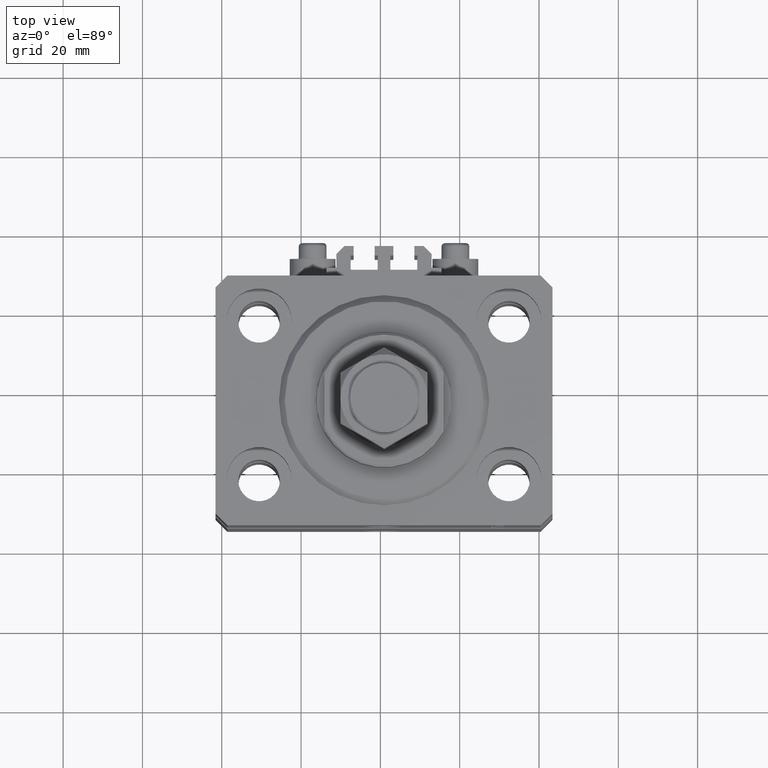
[diagram: clean part render]
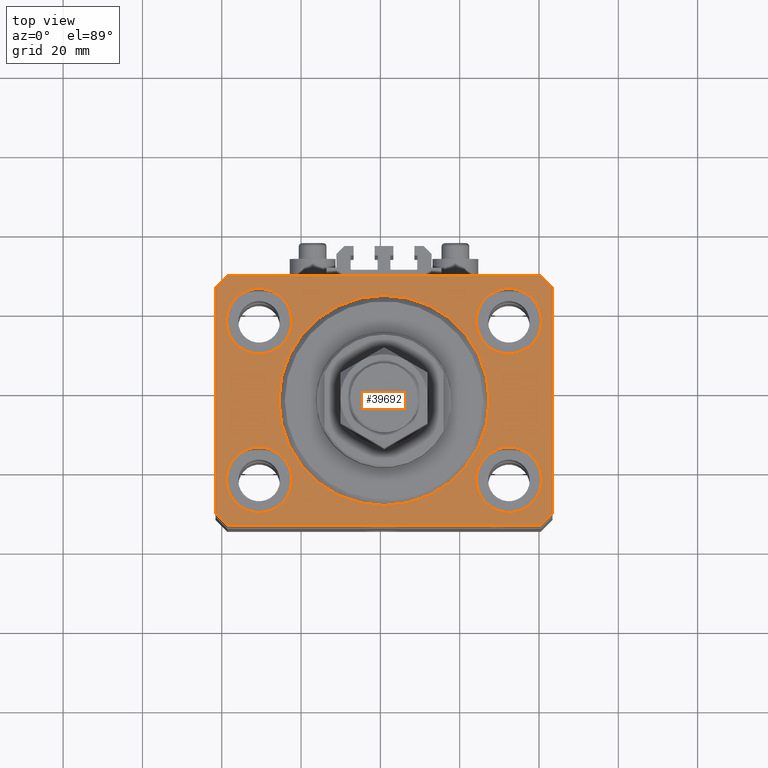
[diagram: same view with one face highlighted and labeled with its STEP entity id]
A machine part, top view. The second image highlights one B-rep face of the part: STEP entity #39692.
In plain terms, the highlighted planar face has unit normal (0, 0, 1).
Its self-contained STEP definition (entity closure, byte-faithful):
#910 = EDGE_LOOP ( 'NONE', ( #41602, #21424 ) ) ;
#1251 = VERTEX_POINT ( 'NONE', #37054 ) ;
#1257 = DIRECTION ( 'NONE',  ( 1.000000000000000000, 0.000000000000000000, 0.000000000000000000 ) ) ;
#1356 = ORIENTED_EDGE ( 'NONE', *, *, #16216, .T. ) ;
#1658 = DIRECTION ( 'NONE',  ( 1.000000000000000000, 0.000000000000000000, 0.000000000000000000 ) ) ;
#2346 = AXIS2_PLACEMENT_3D ( 'NONE', #21245, #6319, #17783 ) ;
#2505 = CARTESIAN_POINT ( 'NONE',  ( -23.25000000000000000, -20.00000000000000000, 0.000000000000000000 ) ) ;
#3158 = CIRCLE ( 'NONE', #14306, 8.250000000000000000 ) ;
#3295 = CIRCLE ( 'NONE', #22387, 8.249999999999992895 ) ;
#3418 = VERTEX_POINT ( 'NONE', #23102 ) ;
#4095 = CARTESIAN_POINT ( 'NONE',  ( 0.000000000000000000, 0.000000000000000000, 0.000000000000000000 ) ) ;
#4358 = CIRCLE ( 'NONE', #22648, 26.50000000000000355 ) ;
#4408 = DIRECTION ( 'NONE',  ( 0.000000000000000000, 0.000000000000000000, 1.000000000000000000 ) ) ;
#4598 = DIRECTION ( 'NONE',  ( -1.000000000000000000, 0.000000000000000000, 0.000000000000000000 ) ) ;
#4822 = DIRECTION ( 'NONE',  ( 1.000000000000000000, 0.000000000000000000, 0.000000000000000000 ) ) ;
#4964 = CARTESIAN_POINT ( 'NONE',  ( 42.50000000000051870, 28.49999999999995381, 0.000000000000000000 ) ) ;
#5398 = EDGE_CURVE ( 'NONE', #35491, #14835, #19025, .T. ) ;
#5399 = FACE_BOUND ( 'NONE', #910, .T. ) ;
#5593 = VERTEX_POINT ( 'NONE', #40188 ) ;
#5596 = EDGE_CURVE ( 'NONE', #22363, #1251, #28612, .T. ) ;
#5786 = EDGE_CURVE ( 'NONE', #25481, #46720, #3158, .T. ) ;
#5935 = VECTOR ( 'NONE', #19858, 1000.000000000000000 ) ;
#6208 = CARTESIAN_POINT ( 'NONE',  ( -31.50000000000000000, 20.00000000000000000, 0.000000000000000000 ) ) ;
#6319 = DIRECTION ( 'NONE',  ( 0.000000000000000000, 0.000000000000000000, 1.000000000000000000 ) ) ;
#6420 = LINE ( 'NONE', #36298, #46333 ) ;
#6706 = DIRECTION ( 'NONE',  ( 0.000000000000000000, 0.000000000000000000, 1.000000000000000000 ) ) ;
#8273 = VERTEX_POINT ( 'NONE', #10079 ) ;
#8701 = ORIENTED_EDGE ( 'NONE', *, *, #46105, .F. ) ;
#9136 = CARTESIAN_POINT ( 'NONE',  ( 42.50000000000051870, 28.49999999999995381, 0.000000000000000000 ) ) ;
#9358 = CARTESIAN_POINT ( 'NONE',  ( 42.50000000000000711, -28.50000000000000355, 0.000000000000000000 ) ) ;
#9655 = DIRECTION ( 'NONE',  ( 0.000000000000000000, -1.000000000000000000, 0.000000000000000000 ) ) ;
#9723 = CARTESIAN_POINT ( 'NONE',  ( -42.50000000000000000, -28.50000000000000000, 0.000000000000000000 ) ) ;
#10079 = CARTESIAN_POINT ( 'NONE',  ( 39.50000000000056843, 31.50000000000000000, 0.000000000000000000 ) ) ;
#10335 = VECTOR ( 'NONE', #17113, 1000.000000000000000 ) ;
#11861 = AXIS2_PLACEMENT_3D ( 'NONE', #4095, #12294, #4822 ) ;
#12226 = CARTESIAN_POINT ( 'NONE',  ( -23.25000000000000000, 20.00000000000000000, 0.000000000000000000 ) ) ;
#12294 = DIRECTION ( 'NONE',  ( 0.000000000000000000, 0.000000000000000000, 1.000000000000000000 ) ) ;
#12867 = FACE_OUTER_BOUND ( 'NONE', #42134, .T. ) ;
#12987 = CARTESIAN_POINT ( 'NONE',  ( -31.50000000000000000, 20.00000000000000000, 0.000000000000000000 ) ) ;
#13626 = CARTESIAN_POINT ( 'NONE',  ( 31.50000000000000000, 20.00000000000001066, 0.000000000000000000 ) ) ;
#13877 = DIRECTION ( 'NONE',  ( 1.000000000000000000, 0.000000000000000000, 0.000000000000000000 ) ) ;
#14235 = ORIENTED_EDGE ( 'NONE', *, *, #16903, .F. ) ;
#14250 = ORIENTED_EDGE ( 'NONE', *, *, #25965, .T. ) ;
#14306 = AXIS2_PLACEMENT_3D ( 'NONE', #12987, #35398, #38886 ) ;
#14835 = VERTEX_POINT ( 'NONE', #43764 ) ;
#14942 = EDGE_CURVE ( 'NONE', #8273, #31285, #20040, .T. ) ;
#15120 = ORIENTED_EDGE ( 'NONE', *, *, #27520, .F. ) ;
#16216 = EDGE_CURVE ( 'NONE', #17601, #25427, #6420, .T. ) ;
#16250 = CIRCLE ( 'NONE', #48843, 8.249999999999992895 ) ;
#16624 = CIRCLE ( 'NONE', #46827, 8.250000000000000000 ) ;
#16884 = VECTOR ( 'NONE', #4598, 1000.000000000000000 ) ;
#16903 = EDGE_CURVE ( 'NONE', #41244, #42195, #44788, .T. ) ;
#17084 = LINE ( 'NONE', #9358, #42469 ) ;
#17113 = DIRECTION ( 'NONE',  ( -0.7071067811865471286, -0.7071067811865479058, 0.000000000000000000 ) ) ;
#17173 = EDGE_LOOP ( 'NONE', ( #15120, #29763 ) ) ;
#17601 = VERTEX_POINT ( 'NONE', #46708 ) ;
#17783 = DIRECTION ( 'NONE',  ( 1.000000000000000000, 0.000000000000000000, 0.000000000000000000 ) ) ;
#18168 = ORIENTED_EDGE ( 'NONE', *, *, #14942, .T. ) ;
#18419 = CIRCLE ( 'NONE', #20781, 8.250000000000000000 ) ;
#18728 = DIRECTION ( 'NONE',  ( 0.000000000000000000, 0.000000000000000000, 1.000000000000000000 ) ) ;
#18818 = CARTESIAN_POINT ( 'NONE',  ( -26.50000000000000355, 3.245314017740486554E-15, 0.000000000000000000 ) ) ;
#18825 = ORIENTED_EDGE ( 'NONE', *, *, #46125, .F. ) ;
#19025 = CIRCLE ( 'NONE', #11861, 26.50000000000000355 ) ;
#19771 = ORIENTED_EDGE ( 'NONE', *, *, #30513, .T. ) ;
#19858 = DIRECTION ( 'NONE',  ( 0.7071067811865471286, -0.7071067811865479058, 0.000000000000000000 ) ) ;
#19951 = EDGE_CURVE ( 'NONE', #25427, #41489, #20850, .T. ) ;
#20040 = LINE ( 'NONE', #39223, #16884 ) ;
#20333 = FACE_BOUND ( 'NONE', #23026, .T. ) ;
#20355 = VECTOR ( 'NONE', #24648, 1000.000000000000000 ) ;
#20781 = AXIS2_PLACEMENT_3D ( 'NONE', #6208, #6706, #41051 ) ;
#20850 = LINE ( 'NONE', #31312, #5935 ) ;
#20989 = CARTESIAN_POINT ( 'NONE',  ( -39.50000000000000711, -31.50000000000000000, 0.000000000000000000 ) ) ;
#21039 = CARTESIAN_POINT ( 'NONE',  ( -39.50000000000000711, 31.50000000000000000, 0.000000000000000000 ) ) ;
#21245 = CARTESIAN_POINT ( 'NONE',  ( -31.50000000000000000, -20.00000000000000000, 0.000000000000000000 ) ) ;
#21424 = ORIENTED_EDGE ( 'NONE', *, *, #40626, .F. ) ;
#21909 = CARTESIAN_POINT ( 'NONE',  ( -39.75000000000000000, 20.00000000000000000, 0.000000000000000000 ) ) ;
#22363 = VERTEX_POINT ( 'NONE', #2505 ) ;
#22387 = AXIS2_PLACEMENT_3D ( 'NONE', #32590, #25128, #44296 ) ;
#22456 = DIRECTION ( 'NONE',  ( 1.000000000000000000, 0.000000000000000000, 0.000000000000000000 ) ) ;
#22648 = AXIS2_PLACEMENT_3D ( 'NONE', #47423, #18728, #22456 ) ;
#23026 = EDGE_LOOP ( 'NONE', ( #8701, #32516 ) ) ;
#23102 = CARTESIAN_POINT ( 'NONE',  ( 39.50000000000000711, -31.50000000000000000, 0.000000000000000000 ) ) ;
#23330 = FACE_BOUND ( 'NONE', #36959, .T. ) ;
#23756 = VERTEX_POINT ( 'NONE', #4964 ) ;
#23817 = DIRECTION ( 'NONE',  ( -0.7071067811865356934, 0.7071067811865594521, 0.000000000000000000 ) ) ;
#24150 = VERTEX_POINT ( 'NONE', #31533 ) ;
#24244 = ORIENTED_EDGE ( 'NONE', *, *, #32497, .T. ) ;
#24402 = VERTEX_POINT ( 'NONE', #40892 ) ;
#24648 = DIRECTION ( 'NONE',  ( 0.7071067811865483499, 0.7071067811865466846, 0.000000000000000000 ) ) ;
#24684 = ORIENTED_EDGE ( 'NONE', *, *, #39701, .T. ) ;
#24923 = CARTESIAN_POINT ( 'NONE',  ( 31.50000000000000000, -20.00000000000000000, 0.000000000000000000 ) ) ;
#25128 = DIRECTION ( 'NONE',  ( 0.000000000000000000, 0.000000000000000000, 1.000000000000000000 ) ) ;
#25427 = VERTEX_POINT ( 'NONE', #9723 ) ;
#25481 = VERTEX_POINT ( 'NONE', #21909 ) ;
#25965 = EDGE_CURVE ( 'NONE', #5593, #23756, #17084, .T. ) ;
#26175 = EDGE_CURVE ( 'NONE', #24150, #24402, #16250, .T. ) ;
#27283 = AXIS2_PLACEMENT_3D ( 'NONE', #24923, #48550, #36372 ) ;
#27520 = EDGE_CURVE ( 'NONE', #14835, #35491, #4358, .T. ) ;
#28612 = CIRCLE ( 'NONE', #2346, 8.250000000000000000 ) ;
#29763 = ORIENTED_EDGE ( 'NONE', *, *, #5398, .F. ) ;
#30138 = VECTOR ( 'NONE', #23817, 1000.000000000000114 ) ;
#30145 = EDGE_CURVE ( 'NONE', #24402, #24150, #32268, .T. ) ;
#30513 = EDGE_CURVE ( 'NONE', #3418, #5593, #32119, .T. ) ;
#31035 = CARTESIAN_POINT ( 'NONE',  ( 23.25000000000000355, -20.00000000000000000, 0.000000000000000000 ) ) ;
#31043 = PLANE ( 'NONE',  #34124 ) ;
#31285 = VERTEX_POINT ( 'NONE', #21039 ) ;
#31312 = CARTESIAN_POINT ( 'NONE',  ( -42.50000000000000000, -28.50000000000000000, 0.000000000000000000 ) ) ;
#31533 = CARTESIAN_POINT ( 'NONE',  ( 23.25000000000000355, 20.00000000000001066, 0.000000000000000000 ) ) ;
#31794 = LINE ( 'NONE', #46736, #10335 ) ;
#32119 = LINE ( 'NONE', #35366, #20355 ) ;
#32268 = CIRCLE ( 'NONE', #37079, 8.249999999999992895 ) ;
#32497 = EDGE_CURVE ( 'NONE', #41489, #3418, #36921, .T. ) ;
#32516 = ORIENTED_EDGE ( 'NONE', *, *, #5786, .F. ) ;
#32590 = CARTESIAN_POINT ( 'NONE',  ( 31.50000000000000000, -20.00000000000000000, 0.000000000000000000 ) ) ;
#34124 = AXIS2_PLACEMENT_3D ( 'NONE', #39275, #4408, #43246 ) ;
#35286 = LINE ( 'NONE', #9136, #30138 ) ;
#35344 = ORIENTED_EDGE ( 'NONE', *, *, #26175, .F. ) ;
#35366 = CARTESIAN_POINT ( 'NONE',  ( 39.50000000000000711, -31.50000000000000000, 0.000000000000000000 ) ) ;
#35388 = CARTESIAN_POINT ( 'NONE',  ( 31.50000000000000000, 20.00000000000001066, 0.000000000000000000 ) ) ;
#35398 = DIRECTION ( 'NONE',  ( 0.000000000000000000, 0.000000000000000000, 1.000000000000000000 ) ) ;
#35491 = VERTEX_POINT ( 'NONE', #18818 ) ;
#35780 = DIRECTION ( 'NONE',  ( 0.000000000000000000, 0.000000000000000000, 1.000000000000000000 ) ) ;
#36187 = DIRECTION ( 'NONE',  ( 1.000000000000000000, 0.000000000000000000, 0.000000000000000000 ) ) ;
#36298 = CARTESIAN_POINT ( 'NONE',  ( -42.50000000000000000, 28.50000000000000000, 0.000000000000000000 ) ) ;
#36372 = DIRECTION ( 'NONE',  ( 1.000000000000000000, 0.000000000000000000, 0.000000000000000000 ) ) ;
#36528 = DIRECTION ( 'NONE',  ( 0.000000000000000000, 0.000000000000000000, 1.000000000000000000 ) ) ;
#36921 = LINE ( 'NONE', #20989, #39530 ) ;
#36959 = EDGE_LOOP ( 'NONE', ( #18825, #14235 ) ) ;
#37054 = CARTESIAN_POINT ( 'NONE',  ( -39.75000000000000000, -20.00000000000000000, 0.000000000000000000 ) ) ;
#37079 = AXIS2_PLACEMENT_3D ( 'NONE', #13626, #36528, #13877 ) ;
#37250 = ORIENTED_EDGE ( 'NONE', *, *, #30145, .F. ) ;
#38886 = DIRECTION ( 'NONE',  ( 1.000000000000000000, 0.000000000000000000, 0.000000000000000000 ) ) ;
#39223 = CARTESIAN_POINT ( 'NONE',  ( 39.50000000000056843, 31.50000000000000000, 0.000000000000000000 ) ) ;
#39275 = CARTESIAN_POINT ( 'NONE',  ( 0.000000000000000000, 0.000000000000000000, 0.000000000000000000 ) ) ;
#39282 = CARTESIAN_POINT ( 'NONE',  ( -31.50000000000000000, -20.00000000000000000, 0.000000000000000000 ) ) ;
#39494 = DIRECTION ( 'NONE',  ( 8.886653596232072440E-15, 1.000000000000000000, 0.000000000000000000 ) ) ;
#39530 = VECTOR ( 'NONE', #36187, 1000.000000000000000 ) ;
#39692 = ADVANCED_FACE ( 'NONE', ( #5399, #23330, #46482, #20333, #42260, #12867 ), #31043, .T. ) ;
#39701 = EDGE_CURVE ( 'NONE', #23756, #8273, #35286, .T. ) ;
#40188 = CARTESIAN_POINT ( 'NONE',  ( 42.50000000000000711, -28.50000000000000355, 0.000000000000000000 ) ) ;
#40626 = EDGE_CURVE ( 'NONE', #1251, #22363, #16624, .T. ) ;
#40892 = CARTESIAN_POINT ( 'NONE',  ( 39.74999999999999289, 20.00000000000001066, 0.000000000000000000 ) ) ;
#41051 = DIRECTION ( 'NONE',  ( 1.000000000000000000, 0.000000000000000000, 0.000000000000000000 ) ) ;
#41055 = ORIENTED_EDGE ( 'NONE', *, *, #43263, .T. ) ;
#41244 = VERTEX_POINT ( 'NONE', #31035 ) ;
#41489 = VERTEX_POINT ( 'NONE', #41719 ) ;
#41602 = ORIENTED_EDGE ( 'NONE', *, *, #5596, .F. ) ;
#41719 = CARTESIAN_POINT ( 'NONE',  ( -39.50000000000000711, -31.50000000000000000, 0.000000000000000000 ) ) ;
#42134 = EDGE_LOOP ( 'NONE', ( #18168, #41055, #1356, #48931, #24244, #19771, #14250, #24684 ) ) ;
#42195 = VERTEX_POINT ( 'NONE', #44233 ) ;
#42260 = FACE_BOUND ( 'NONE', #17173, .T. ) ;
#42469 = VECTOR ( 'NONE', #39494, 1000.000000000000000 ) ;
#43106 = DIRECTION ( 'NONE',  ( 0.000000000000000000, 0.000000000000000000, 1.000000000000000000 ) ) ;
#43187 = EDGE_LOOP ( 'NONE', ( #37250, #35344 ) ) ;
#43246 = DIRECTION ( 'NONE',  ( 1.000000000000000000, 0.000000000000000000, -0.000000000000000000 ) ) ;
#43263 = EDGE_CURVE ( 'NONE', #31285, #17601, #31794, .T. ) ;
#43764 = CARTESIAN_POINT ( 'NONE',  ( 26.50000000000000355, 0.000000000000000000, 0.000000000000000000 ) ) ;
#44233 = CARTESIAN_POINT ( 'NONE',  ( 39.74999999999999289, -20.00000000000000000, 0.000000000000000000 ) ) ;
#44296 = DIRECTION ( 'NONE',  ( 1.000000000000000000, 0.000000000000000000, 0.000000000000000000 ) ) ;
#44788 = CIRCLE ( 'NONE', #27283, 8.249999999999992895 ) ;
#46105 = EDGE_CURVE ( 'NONE', #46720, #25481, #18419, .T. ) ;
#46125 = EDGE_CURVE ( 'NONE', #42195, #41244, #3295, .T. ) ;
#46333 = VECTOR ( 'NONE', #9655, 1000.000000000000000 ) ;
#46482 = FACE_BOUND ( 'NONE', #43187, .T. ) ;
#46708 = CARTESIAN_POINT ( 'NONE',  ( -42.50000000000000000, 28.50000000000000000, 0.000000000000000000 ) ) ;
#46720 = VERTEX_POINT ( 'NONE', #12226 ) ;
#46736 = CARTESIAN_POINT ( 'NONE',  ( -39.50000000000000711, 31.50000000000000000, 0.000000000000000000 ) ) ;
#46827 = AXIS2_PLACEMENT_3D ( 'NONE', #39282, #35780, #1658 ) ;
#47423 = CARTESIAN_POINT ( 'NONE',  ( 0.000000000000000000, 0.000000000000000000, 0.000000000000000000 ) ) ;
#48550 = DIRECTION ( 'NONE',  ( 0.000000000000000000, 0.000000000000000000, 1.000000000000000000 ) ) ;
#48843 = AXIS2_PLACEMENT_3D ( 'NONE', #35388, #43106, #1257 ) ;
#48931 = ORIENTED_EDGE ( 'NONE', *, *, #19951, .T. ) ;